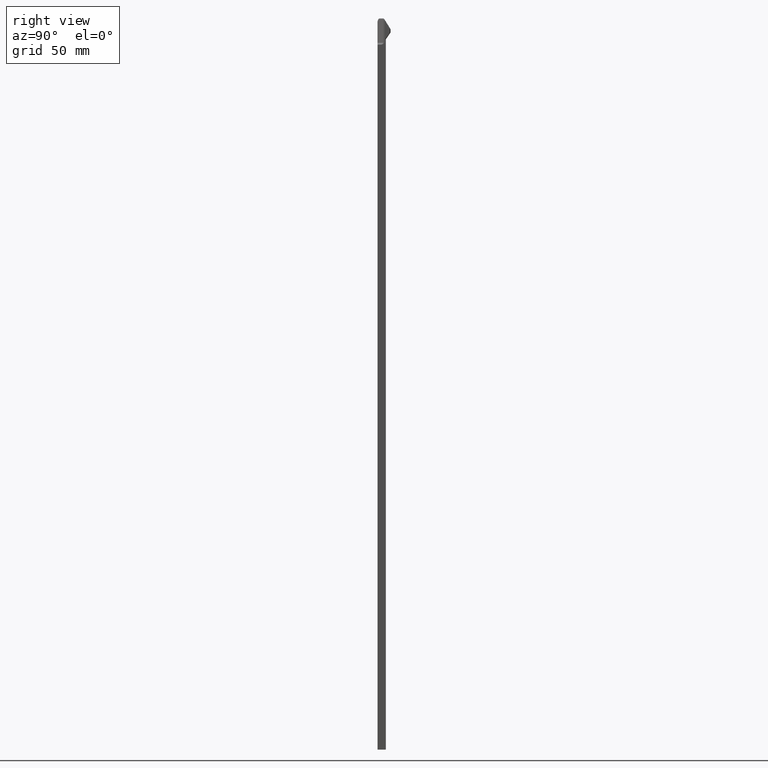
[diagram: clean part render]
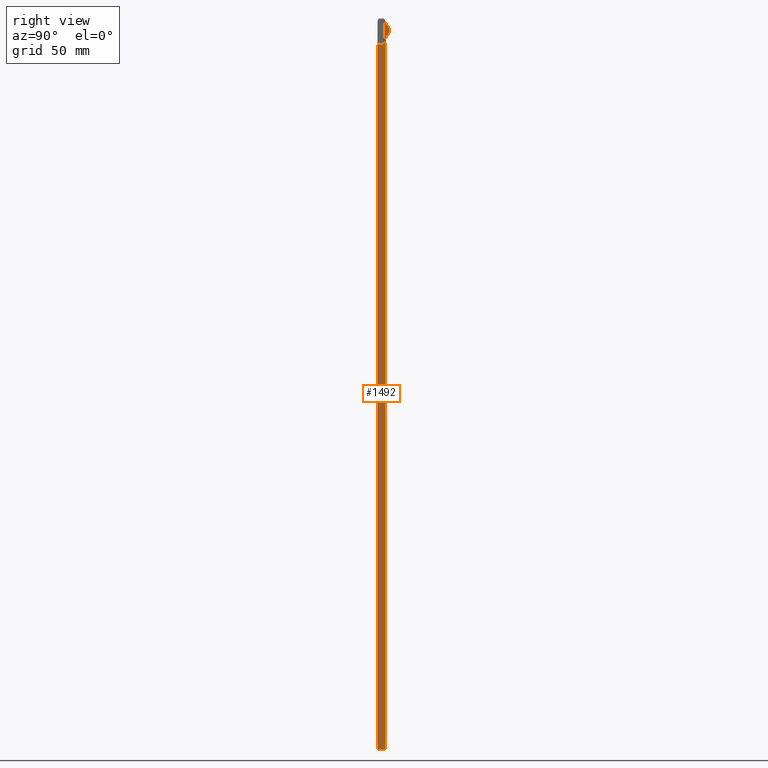
[diagram: same view with one face highlighted and labeled with its STEP entity id]
A machine part, right view. The second image highlights one B-rep face of the part: STEP entity #1492.
In plain terms, the highlighted planar face has unit normal (1, 0, 0).
Its self-contained STEP definition (entity closure, byte-faithful):
#80=DIRECTION('',(1.927353184835E-9,-1.780642063048E-10,-1.E0));
#81=VECTOR('',#80,2.024000026485E1);
#82=CARTESIAN_POINT('',(1.184999609904E-1,-1.034999963960E-1,1.480000264854E0));
#83=LINE('',#82,#81);
#89=DIRECTION('',(0.E0,0.E0,-1.E0));
#90=VECTOR('',#89,2.041519016261E1);
#91=CARTESIAN_POINT('',(1.185E-1,1.035E-1,1.655190162607E0));
#92=LINE('',#91,#90);
#93=DIRECTION('',(4.879856931960E-6,9.999999999799E-1,-4.041704475154E-6));
#94=VECTOR('',#93,6.552838762057E-2);
#95=CARTESIAN_POINT('',(1.184999609904E-1,-1.034999963960E-1,1.480000264854E0));
#96=LINE('',#95,#94);
#97=CARTESIAN_POINT('',(1.185002807595E-1,-3.797160877673E-2,1.480000000008E0));
#98=CARTESIAN_POINT('',(1.185003247032E-1,-3.158295167032E-2,1.479999953049E0));
#99=CARTESIAN_POINT('',(1.184999328467E-1,-1.919739011964E-2,1.480843008226E0));
#100=CARTESIAN_POINT('',(1.184997479818E-1,-1.169692653057E-3,
1.484591773117E0));
#101=CARTESIAN_POINT('',(1.185006328113E-1,9.233272507390E-3,1.488334069748E0));
#102=CARTESIAN_POINT('',(1.185004095563E-1,1.416042560417E-2,1.490492643375E0));
#104=CARTESIAN_POINT('',(1.185004095563E-1,1.416042560417E-2,1.490492643375E0));
#105=CARTESIAN_POINT('',(1.185004006481E-1,1.925947215085E-2,1.492726249746E0));
#106=CARTESIAN_POINT('',(1.184998250761E-1,2.953836717874E-2,1.497922075090E0));
#107=CARTESIAN_POINT('',(1.185000112616E-1,4.519365282628E-2,1.507941521709E0));
#108=CARTESIAN_POINT('',(1.185001298775E-1,6.108261853982E-2,1.520111941948E0));
#109=CARTESIAN_POINT('',(1.184994692284E-1,7.738213245405E-2,1.534313663372E0));
#110=CARTESIAN_POINT('',(1.185011518820E-1,8.846170013772E-2,1.544668447178E0));
#111=CARTESIAN_POINT('',(1.185E-1,9.416042558696E-2,1.55E0));
#113=DIRECTION('',(-1.973361842265E-7,3.649583517853E-6,-9.999999999933E-1));
#114=VECTOR('',#113,6.011995442918E-1);
#115=CARTESIAN_POINT('',(1.185001186384E-1,9.415823145901E-2,2.151199544288E0));
#116=LINE('',#115,#114);
#117=DIRECTION('',(4.607307199679E-7,-5.299199188014E-1,8.480476871363E-1));
#118=VECTOR('',#117,2.575005723065E-1);
#119=CARTESIAN_POINT('',(1.185E-1,2.306129138270E-1,1.932826779507E0));
#120=LINE('',#119,#118);
#121=CARTESIAN_POINT('',(1.185E-1,2.145E-1,1.922758313487E0));
#122=DIRECTION('',(1.E0,0.E0,0.E0));
#123=DIRECTION('',(0.E0,1.E0,0.E0));
#124=AXIS2_PLACEMENT_3D('',#121,#122,#123);
#126=DIRECTION('',(0.E0,0.E0,1.E0));
#127=VECTOR('',#126,7.591823301449E-2);
#128=CARTESIAN_POINT('',(1.185E-1,2.335E-1,1.846840080472E0));
#129=LINE('',#128,#127);
#130=CARTESIAN_POINT('',(1.185E-1,2.145E-1,1.846840080472E0));
#131=DIRECTION('',(1.E0,0.E0,0.E0));
#132=DIRECTION('',(0.E0,8.191520442890E-1,-5.735764363510E-1));
#133=AXIS2_PLACEMENT_3D('',#130,#131,#132);
#135=DIRECTION('',(0.E0,5.735764363510E-1,8.191520442890E-1));
#136=VECTOR('',#135,2.206574064420E-1);
#137=CARTESIAN_POINT('',(1.185E-1,1.035E-1,1.655190162607E0));
#138=LINE('',#137,#136);
#267=DIRECTION('',(0.E0,-1.E0,0.E0));
#268=VECTOR('',#267,2.07E-1);
#269=CARTESIAN_POINT('',(1.185E-1,1.035E-1,-1.876E1));
#270=LINE('',#269,#268);
#849=CARTESIAN_POINT('',(1.185001186384E-1,9.415823145901E-2,2.151199544288E0));
#1178=CARTESIAN_POINT('',(1.184999609904E-1,-1.034999963960E-1,
1.480000264854E0));
#1179=CARTESIAN_POINT('',(1.185002807595E-1,-3.797160877673E-2,
1.480000000008E0));
#1180=VERTEX_POINT('',#1178);
#1181=VERTEX_POINT('',#1179);
#1211=VERTEX_POINT('',#104);
#1212=VERTEX_POINT('',#111);
#1267=VERTEX_POINT('',#849);
#1269=CARTESIAN_POINT('',(1.185E-1,2.306129138270E-1,1.932826779507E0));
#1270=VERTEX_POINT('',#1269);
#1273=CARTESIAN_POINT('',(1.185E-1,2.335E-1,1.922758313487E0));
#1274=VERTEX_POINT('',#1273);
#1277=CARTESIAN_POINT('',(1.185E-1,2.335E-1,1.846840080472E0));
#1278=VERTEX_POINT('',#1277);
#1281=CARTESIAN_POINT('',(1.185E-1,2.300638888415E-1,1.835942128181E0));
#1282=VERTEX_POINT('',#1281);
#1285=CARTESIAN_POINT('',(1.185E-1,1.035E-1,1.655190162607E0));
#1286=VERTEX_POINT('',#1285);
#1359=CARTESIAN_POINT('',(1.185E-1,1.035E-1,-1.876E1));
#1360=VERTEX_POINT('',#1359);
#1361=CARTESIAN_POINT('',(1.185E-1,-1.035E-1,-1.876E1));
#1362=VERTEX_POINT('',#1361);
#1462=CARTESIAN_POINT('',(1.185E-1,-1.185E-1,-1.5E0));
#1463=DIRECTION('',(1.E0,0.E0,0.E0));
#1464=DIRECTION('',(0.E0,1.E0,0.E0));
#1465=AXIS2_PLACEMENT_3D('',#1462,#1463,#1464);
#1466=PLANE('',#1465);
#1468=ORIENTED_EDGE('',*,*,#1467,.T.);
#1470=ORIENTED_EDGE('',*,*,#1469,.T.);
#1471=ORIENTED_EDGE('',*,*,#1452,.F.);
#1473=ORIENTED_EDGE('',*,*,#1472,.T.);
#1475=ORIENTED_EDGE('',*,*,#1474,.T.);
#1477=ORIENTED_EDGE('',*,*,#1476,.T.);
#1479=ORIENTED_EDGE('',*,*,#1478,.F.);
#1481=ORIENTED_EDGE('',*,*,#1480,.F.);
#1483=ORIENTED_EDGE('',*,*,#1482,.F.);
#1485=ORIENTED_EDGE('',*,*,#1484,.F.);
#1487=ORIENTED_EDGE('',*,*,#1486,.F.);
#1489=ORIENTED_EDGE('',*,*,#1488,.F.);
#1490=EDGE_LOOP('',(#1468,#1470,#1471,#1473,#1475,#1477,#1479,#1481,#1483,#1485,
#1487,#1489));
#1491=FACE_OUTER_BOUND('',#1490,.F.);
#1492=ADVANCED_FACE('',(#1491),#1466,.T.);
#103=B_SPLINE_CURVE_WITH_KNOTS('',3,(#97,#98,#99,#100,#101,#102),.UNSPECIFIED.,
.F.,.F.,(4,1,1,4),(0.E0,3.333333333333E-1,6.666666666667E-1,1.E0),
.UNSPECIFIED.);
#112=B_SPLINE_CURVE_WITH_KNOTS('',3,(#104,#105,#106,#107,#108,#109,#110,#111),
.UNSPECIFIED.,.F.,.F.,(4,1,1,1,1,4),(0.E0,2.E-1,4.E-1,6.E-1,8.E-1,1.E0),
.UNSPECIFIED.);
#125=CIRCLE('',#124,1.9E-2);
#134=CIRCLE('',#133,1.9E-2);
#1452=EDGE_CURVE('',#1180,#1362,#83,.T.);
#1467=EDGE_CURVE('',#1286,#1360,#92,.T.);
#1469=EDGE_CURVE('',#1360,#1362,#270,.T.);
#1472=EDGE_CURVE('',#1180,#1181,#96,.T.);
#1474=EDGE_CURVE('',#1181,#1211,#103,.T.);
#1476=EDGE_CURVE('',#1211,#1212,#112,.T.);
#1478=EDGE_CURVE('',#1267,#1212,#116,.T.);
#1480=EDGE_CURVE('',#1270,#1267,#120,.T.);
#1482=EDGE_CURVE('',#1274,#1270,#125,.T.);
#1484=EDGE_CURVE('',#1278,#1274,#129,.T.);
#1486=EDGE_CURVE('',#1282,#1278,#134,.T.);
#1488=EDGE_CURVE('',#1286,#1282,#138,.T.);